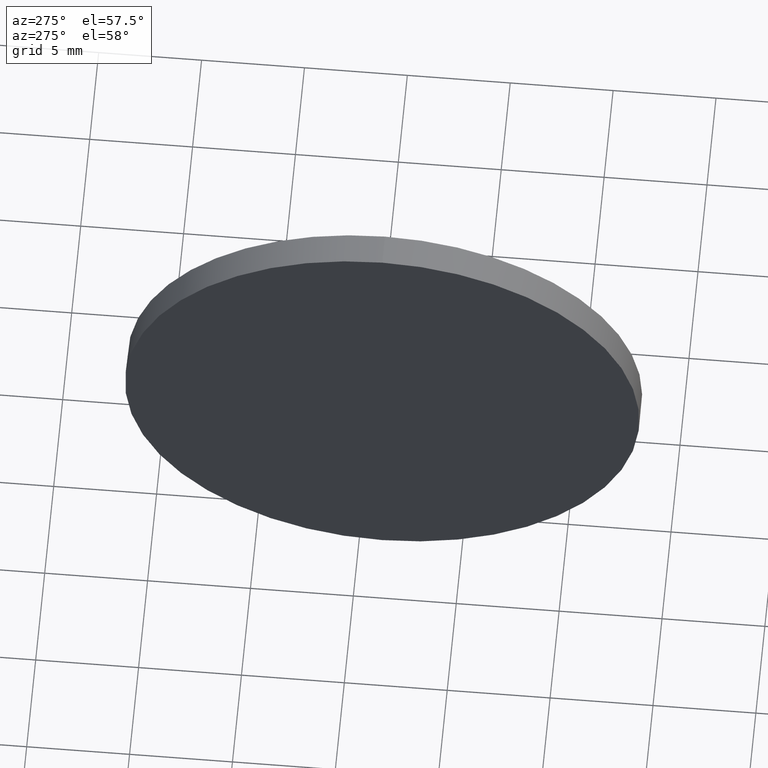
[diagram: clean part render]
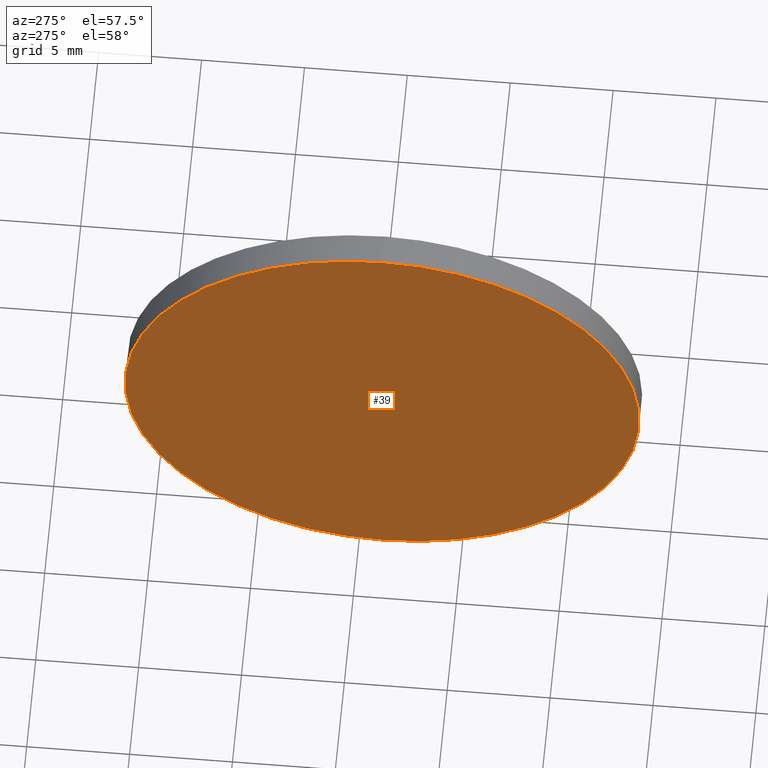
[diagram: same view with one face highlighted and labeled with its STEP entity id]
A machine part, auxiliary view. The second image highlights one B-rep face of the part: STEP entity #39.
In plain terms, the highlighted planar face has unit normal (1, 0, 0).
Its self-contained STEP definition (entity closure, byte-faithful):
#9 = CARTESIAN_POINT ( 'NONE',  ( 492.9792713746937200, 143.8584804558214500, 0.0000000000000000000 ) ) ;
#17 = DIRECTION ( 'NONE',  ( 0.0000000000000000000, 0.0000000000000000000, 1.000000000000000000 ) ) ;
#22 = AXIS2_PLACEMENT_3D ( 'NONE', #184, #81, #17 ) ;
#28 = CIRCLE ( 'NONE', #22, 12.50000000000001100 ) ;
#37 = PLANE ( 'NONE',  #147 ) ;
#39 = ADVANCED_FACE ( 'NONE', ( #155 ), #37, .F. ) ;
#46 = ORIENTED_EDGE ( 'NONE', *, *, #84, .T. ) ;
#54 = DIRECTION ( 'NONE',  ( 0.0000000000000000000, 0.0000000000000000000, 1.000000000000000000 ) ) ;
#77 = DIRECTION ( 'NONE',  ( 0.0000000000000000000, 0.0000000000000000000, -1.000000000000000000 ) ) ;
#81 = DIRECTION ( 'NONE',  ( -1.000000000000000000, -0.0000000000000000000, -0.0000000000000000000 ) ) ;
#84 = EDGE_CURVE ( 'NONE', #149, #176, #86, .T. ) ;
#86 = CIRCLE ( 'NONE', #164, 12.50000000000001100 ) ;
#89 = ORIENTED_EDGE ( 'NONE', *, *, #92, .T. ) ;
#92 = EDGE_CURVE ( 'NONE', #176, #149, #28, .T. ) ;
#106 = CARTESIAN_POINT ( 'NONE',  ( 492.9792713746937200, 143.8584804558214500, -12.50000000000001100 ) ) ;
#115 = EDGE_LOOP ( 'NONE', ( #46, #89 ) ) ;
#121 = CARTESIAN_POINT ( 'NONE',  ( 492.9792713746937200, 143.8584804558214500, 0.0000000000000000000 ) ) ;
#141 = DIRECTION ( 'NONE',  ( -1.000000000000000000, -0.0000000000000000000, -0.0000000000000000000 ) ) ;
#143 = CARTESIAN_POINT ( 'NONE',  ( 492.9792713746937200, 143.8584804558214500, 12.50000000000001100 ) ) ;
#147 = AXIS2_PLACEMENT_3D ( 'NONE', #9, #151, #77 ) ;
#149 = VERTEX_POINT ( 'NONE', #143 ) ;
#151 = DIRECTION ( 'NONE',  ( 1.000000000000000000, 0.0000000000000000000, 0.0000000000000000000 ) ) ;
#155 = FACE_OUTER_BOUND ( 'NONE', #115, .T. ) ;
#164 = AXIS2_PLACEMENT_3D ( 'NONE', #121, #141, #54 ) ;
#176 = VERTEX_POINT ( 'NONE', #106 ) ;
#184 = CARTESIAN_POINT ( 'NONE',  ( 492.9792713746937200, 143.8584804558214500, 0.0000000000000000000 ) ) ;